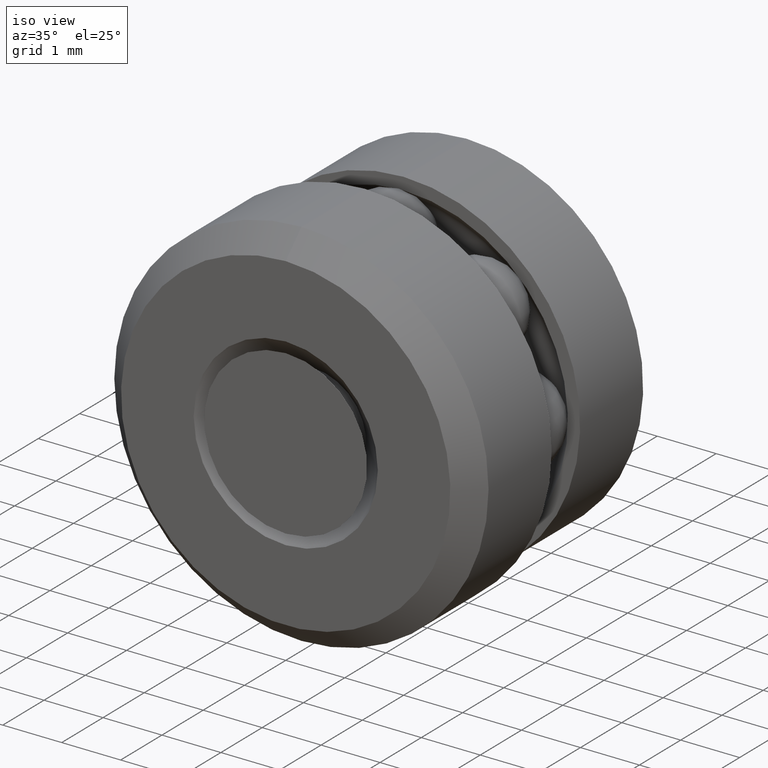
[diagram: clean part render]
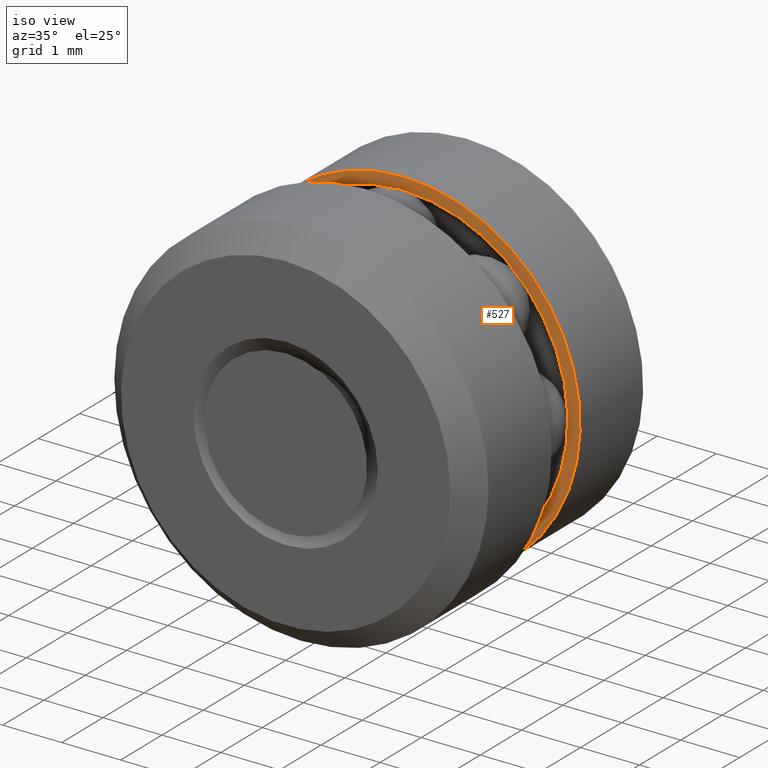
[diagram: same view with one face highlighted and labeled with its STEP entity id]
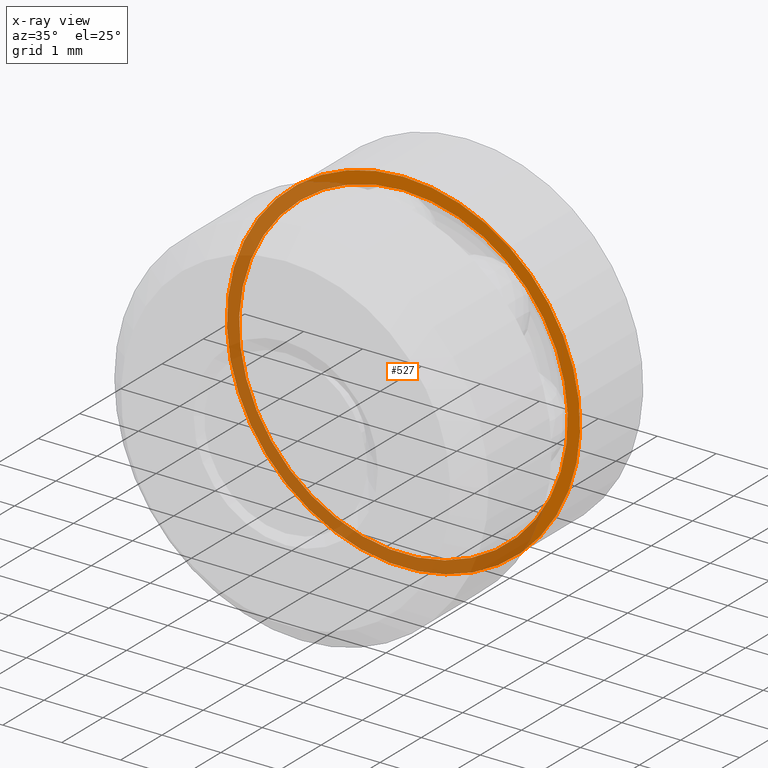
[diagram: x-ray of the same camera — body ghosted, the highlighted face saturated]
A machine part, iso view. The second image highlights one B-rep face of the part: STEP entity #527.
The next image is the same camera in x-ray: the body ghosted, the highlighted face saturated — about 56% of this face is hidden behind the body in this view.
In plain terms, the highlighted planar face has unit normal (0, -1, 0).
Its self-contained STEP definition (entity closure, byte-faithful):
#13 = CARTESIAN_POINT ( 'NONE',  ( -0.1179999999999999400, 0.1123499999999999600, 0.0000000000000000000 ) ) ;
#29 = DIRECTION ( 'NONE',  ( 0.0000000000000000000, 0.0000000000000000000, 1.000000000000000000 ) ) ;
#48 = CIRCLE ( 'NONE', #215, 0.1179999999999999400 ) ;
#67 = DIRECTION ( 'NONE',  ( -0.0000000000000000000, 1.000000000000000000, -0.0000000000000000000 ) ) ;
#68 = VERTEX_POINT ( 'NONE', #125 ) ;
#120 = CARTESIAN_POINT ( 'NONE',  ( 0.0000000000000000000, 0.1123499999999999600, 0.0000000000000000000 ) ) ;
#125 = CARTESIAN_POINT ( 'NONE',  ( 0.0000000000000000000, 0.1123499999999999600, 0.1097999999999998800 ) ) ;
#153 = ORIENTED_EDGE ( 'NONE', *, *, #362, .F. ) ;
#168 = DIRECTION ( 'NONE',  ( -0.0000000000000000000, 1.000000000000000000, -0.0000000000000000000 ) ) ;
#173 = VERTEX_POINT ( 'NONE', #474 ) ;
#206 = CIRCLE ( 'NONE', #405, 0.1097999999999998800 ) ;
#215 = AXIS2_PLACEMENT_3D ( 'NONE', #326, #67, #224 ) ;
#224 = DIRECTION ( 'NONE',  ( 0.0000000000000000000, 0.0000000000000000000, 1.000000000000000000 ) ) ;
#244 = EDGE_CURVE ( 'NONE', #68, #68, #206, .T. ) ;
#255 = FACE_OUTER_BOUND ( 'NONE', #488, .T. ) ;
#326 = CARTESIAN_POINT ( 'NONE',  ( 0.0000000000000000000, 0.1123499999999999600, 0.0000000000000000000 ) ) ;
#362 = EDGE_CURVE ( 'NONE', #173, #173, #48, .T. ) ;
#392 = EDGE_LOOP ( 'NONE', ( #551 ) ) ;
#394 = DIRECTION ( 'NONE',  ( 0.0000000000000000000, -1.000000000000000000, 0.0000000000000000000 ) ) ;
#405 = AXIS2_PLACEMENT_3D ( 'NONE', #120, #168, #29 ) ;
#433 = AXIS2_PLACEMENT_3D ( 'NONE', #13, #394, #521 ) ;
#440 = PLANE ( 'NONE',  #433 ) ;
#474 = CARTESIAN_POINT ( 'NONE',  ( 0.0000000000000000000, 0.1123499999999999600, 0.1179999999999999400 ) ) ;
#480 = FACE_BOUND ( 'NONE', #392, .T. ) ;
#488 = EDGE_LOOP ( 'NONE', ( #153 ) ) ;
#521 = DIRECTION ( 'NONE',  ( 0.0000000000000000000, -0.0000000000000000000, -1.000000000000000000 ) ) ;
#527 = ADVANCED_FACE ( 'NONE', ( #480, #255 ), #440, .T. ) ;
#551 = ORIENTED_EDGE ( 'NONE', *, *, #244, .T. ) ;